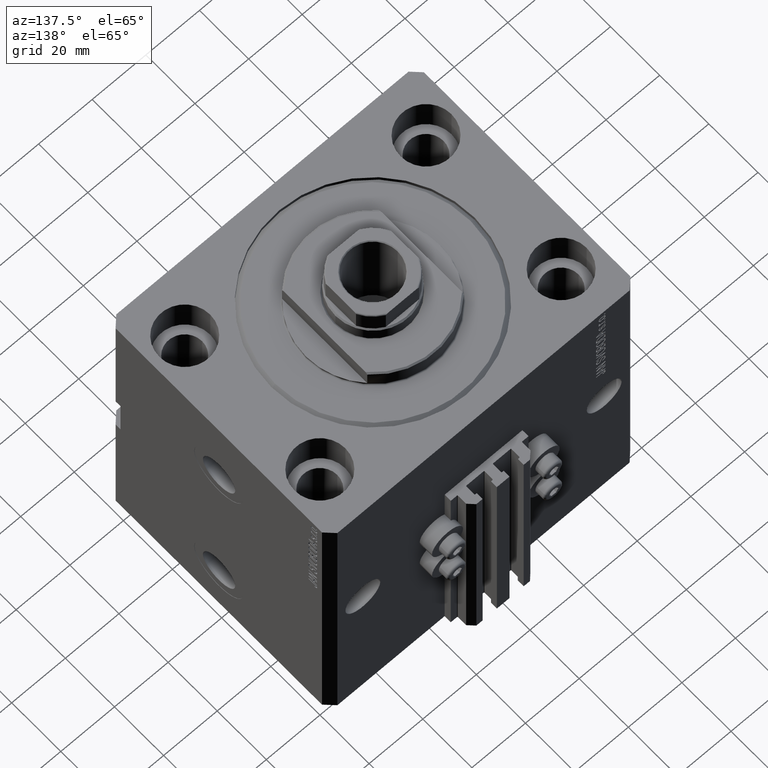
[diagram: clean part render]
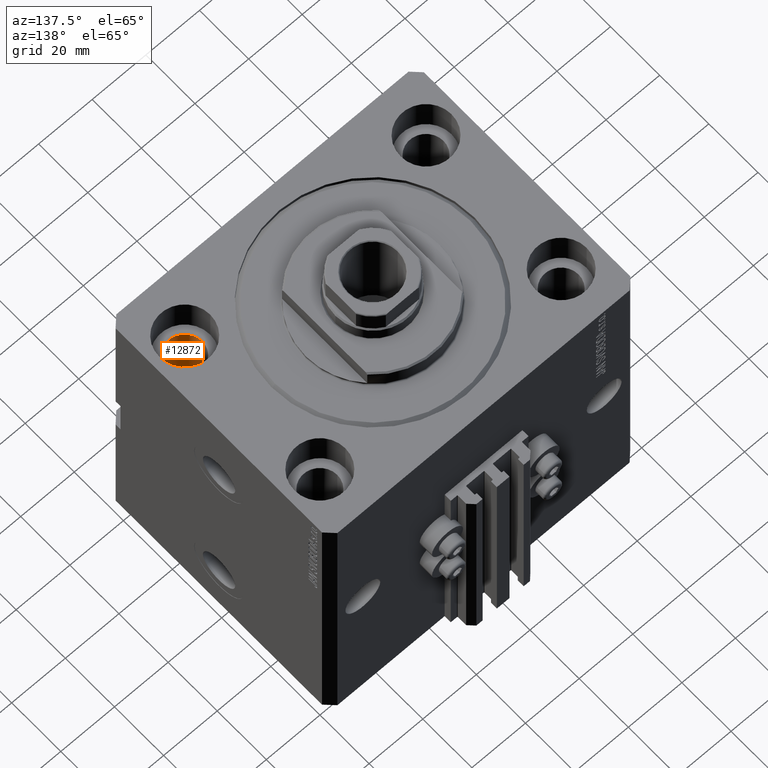
[diagram: same view with one face highlighted and labeled with its STEP entity id]
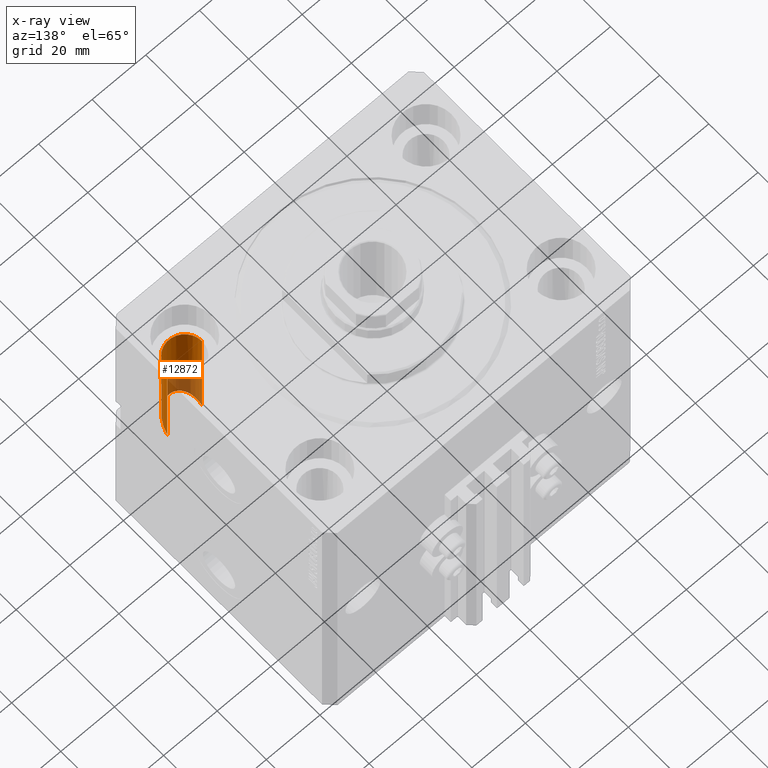
[diagram: x-ray of the same camera — body ghosted, the highlighted face saturated]
A machine part, auxiliary view. The second image highlights one B-rep face of the part: STEP entity #12872.
The next image is the same camera in x-ray: the body ghosted, the highlighted face saturated — about 45% of this face is hidden behind the body in this view.
In plain terms, the highlighted cylindrical surface (edge-blend (fillet) strip) has radius 6.5 mm, axis along (0, 0, 1).
Its self-contained STEP definition (entity closure, byte-faithful):
#420 =( BOUNDED_CURVE ( )  B_SPLINE_CURVE ( 3, ( #26198, #10297, #33174, #22223 ),
 .UNSPECIFIED., .F., .F. ) 
 B_SPLINE_CURVE_WITH_KNOTS ( ( 4, 4 ),
 ( 4.712388980384689674, 7.853981633974482790 ),
 .UNSPECIFIED. ) 
 CURVE ( )  GEOMETRIC_REPRESENTATION_ITEM ( )  RATIONAL_B_SPLINE_CURVE ( ( 1.000000000000000000, 0.3333333333333333703, 0.3333333333333333703, 1.000000000000000000 ) ) 
 REPRESENTATION_ITEM ( '' )  );
#602 = EDGE_CURVE ( 'NONE', #7032, #2589, #420, .T. ) ;
#1344 = ORIENTED_EDGE ( 'NONE', *, *, #28182, .T. ) ;
#2589 = VERTEX_POINT ( 'NONE', #15861 ) ;
#3891 = CARTESIAN_POINT ( 'NONE',  ( 51.50000000000000000, -27.49999999999999645, -112.0000000000000000 ) ) ;
#4470 = ORIENTED_EDGE ( 'NONE', *, *, #19227, .F. ) ;
#5310 = DIRECTION ( 'NONE',  ( -0.000000000000000000, -0.000000000000000000, 1.000000000000000000 ) ) ;
#5357 = DIRECTION ( 'NONE',  ( 0.000000000000000000, 0.000000000000000000, 1.000000000000000000 ) ) ;
#7032 = VERTEX_POINT ( 'NONE', #8112 ) ;
#8112 = CARTESIAN_POINT ( 'NONE',  ( 51.50000000000000711, -27.49999999999999645, -55.00000000000000000 ) ) ;
#10297 = CARTESIAN_POINT ( 'NONE',  ( 51.50000000000002132, -40.49999999999999289, -42.00000000000000000 ) ) ;
#12872 = ADVANCED_FACE ( 'NONE', ( #38310 ), #27100, .F. ) ;
#15078 = CARTESIAN_POINT ( 'NONE',  ( 38.50000000000000000, -27.49999999999999645, -13.00000000000000000 ) ) ;
#15861 = CARTESIAN_POINT ( 'NONE',  ( 38.50000000000000711, -27.49999999999999645, -55.00000000000000000 ) ) ;
#15969 = VERTEX_POINT ( 'NONE', #15078 ) ;
#16056 = VECTOR ( 'NONE', #5310, 1000.000000000000000 ) ;
#16671 = VECTOR ( 'NONE', #46417, 1000.000000000000000 ) ;
#16754 = LINE ( 'NONE', #28185, #16056 ) ;
#16820 = EDGE_CURVE ( 'NONE', #15969, #44545, #41227, .T. ) ;
#19227 = EDGE_CURVE ( 'NONE', #7032, #44545, #31235, .T. ) ;
#21161 = CARTESIAN_POINT ( 'NONE',  ( 51.50000000000000000, -27.49999999999999645, -13.00000000000000000 ) ) ;
#22223 = CARTESIAN_POINT ( 'NONE',  ( 38.50000000000000711, -27.49999999999999645, -55.00000000000000000 ) ) ;
#24336 = DIRECTION ( 'NONE',  ( -0.000000000000000000, -0.000000000000000000, 1.000000000000000000 ) ) ;
#26198 = CARTESIAN_POINT ( 'NONE',  ( 51.50000000000000711, -27.49999999999999645, -55.00000000000000000 ) ) ;
#27100 = CYLINDRICAL_SURFACE ( 'NONE', #37308, 6.499999999999999112 ) ;
#28182 = EDGE_CURVE ( 'NONE', #2589, #15969, #16754, .T. ) ;
#28185 = CARTESIAN_POINT ( 'NONE',  ( 38.50000000000000000, -27.49999999999999645, -112.0000000000000000 ) ) ;
#28728 = CARTESIAN_POINT ( 'NONE',  ( 45.00000000000000000, -27.49999999999999645, -13.00000000000000000 ) ) ;
#29908 = ORIENTED_EDGE ( 'NONE', *, *, #16820, .T. ) ;
#31235 = LINE ( 'NONE', #3891, #16671 ) ;
#31964 = DIRECTION ( 'NONE',  ( 1.000000000000000000, 0.000000000000000000, 0.000000000000000000 ) ) ;
#33174 = CARTESIAN_POINT ( 'NONE',  ( 38.50000000000000711, -40.49999999999999289, -42.00000000000000000 ) ) ;
#34688 = ORIENTED_EDGE ( 'NONE', *, *, #602, .T. ) ;
#36027 = DIRECTION ( 'NONE',  ( 1.000000000000000000, 0.000000000000000000, 0.000000000000000000 ) ) ;
#37308 = AXIS2_PLACEMENT_3D ( 'NONE', #42282, #24336, #36027 ) ;
#38310 = FACE_OUTER_BOUND ( 'NONE', #43500, .T. ) ;
#41227 = CIRCLE ( 'NONE', #43632, 6.499999999999999112 ) ;
#42282 = CARTESIAN_POINT ( 'NONE',  ( 45.00000000000000000, -27.49999999999999645, -112.0000000000000000 ) ) ;
#43500 = EDGE_LOOP ( 'NONE', ( #34688, #1344, #29908, #4470 ) ) ;
#43632 = AXIS2_PLACEMENT_3D ( 'NONE', #28728, #5357, #31964 ) ;
#44545 = VERTEX_POINT ( 'NONE', #21161 ) ;
#46417 = DIRECTION ( 'NONE',  ( -0.000000000000000000, -0.000000000000000000, 1.000000000000000000 ) ) ;